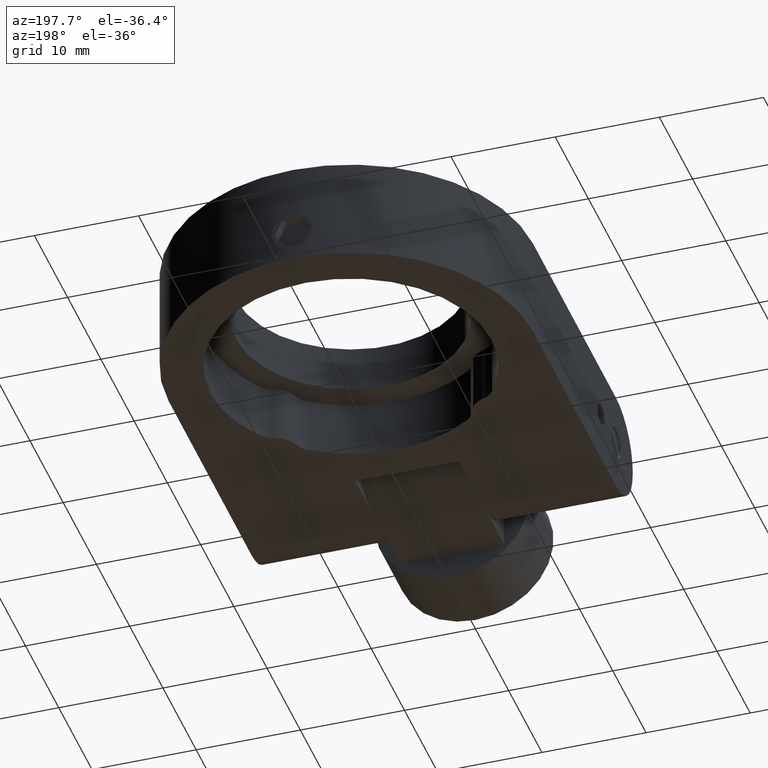
[diagram: clean part render]
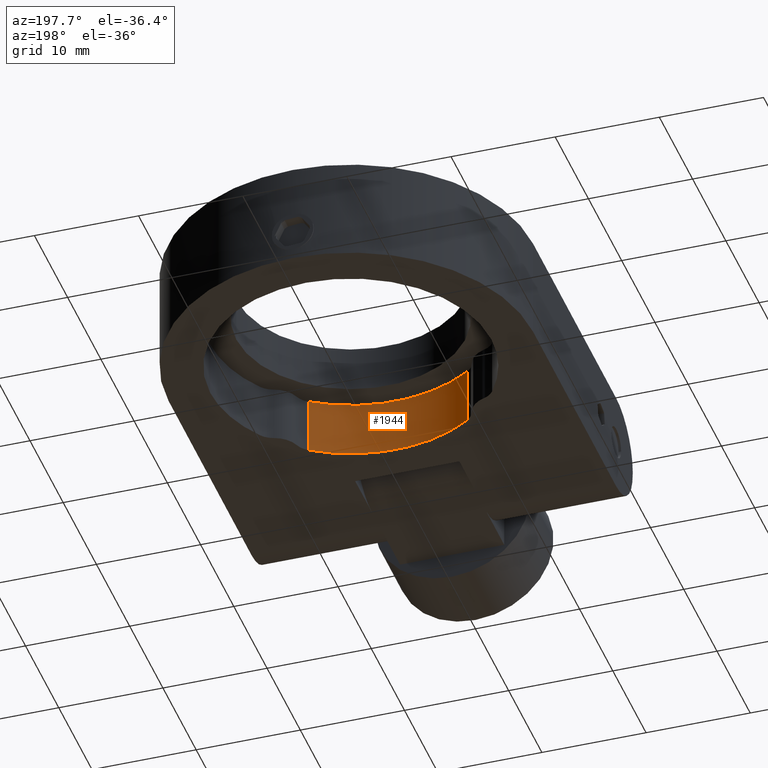
[diagram: same view with one face highlighted and labeled with its STEP entity id]
A machine part, auxiliary view. The second image highlights one B-rep face of the part: STEP entity #1944.
In plain terms, the highlighted cylindrical surface (partial cylindrical patch) has radius 13.5 mm, axis along (-0, -0, -1).
Its self-contained STEP definition (entity closure, byte-faithful):
#125 = EDGE_CURVE ( 'NONE', #2106, #203, #541, .T. ) ;
#146 = ORIENTED_EDGE ( 'NONE', *, *, #1495, .T. ) ;
#203 = VERTEX_POINT ( 'NONE', #890 ) ;
#376 = EDGE_CURVE ( 'NONE', #2106, #3211, #2364, .T. ) ;
#484 = DIRECTION ( 'NONE',  ( -1.057139645054936500E-016, -1.718301073974566900E-032, -1.000000000000000000 ) ) ;
#510 = CARTESIAN_POINT ( 'NONE',  ( 7.624298693328290400, 26.35908130202404500, 0.5000000000000186500 ) ) ;
#541 = CIRCLE ( 'NONE', #2954, 13.50000000000000000 ) ;
#871 = ORIENTED_EDGE ( 'NONE', *, *, #376, .T. ) ;
#890 = CARTESIAN_POINT ( 'NONE',  ( -7.624298693328290400, 26.35908130202404500, 0.5000000000000204300 ) ) ;
#1495 = EDGE_CURVE ( 'NONE', #1694, #203, #3588, .T. ) ;
#1529 = CYLINDRICAL_SURFACE ( 'NONE', #1721, 13.50000000000000000 ) ;
#1598 = ORIENTED_EDGE ( 'NONE', *, *, #125, .F. ) ;
#1631 = DIRECTION ( 'NONE',  ( -1.057139645054936500E-016, -1.718301073974566900E-032, -1.000000000000000000 ) ) ;
#1663 = CARTESIAN_POINT ( 'NONE',  ( -2.415325656008640800E-015, 37.50000000000009900, 0.5000000000000195400 ) ) ;
#1694 = VERTEX_POINT ( 'NONE', #2169 ) ;
#1721 = AXIS2_PLACEMENT_3D ( 'NONE', #3329, #2422, #1849 ) ;
#1774 = CARTESIAN_POINT ( 'NONE',  ( 7.624298693328288600, 26.35908130202404800, -4.999999999999980500 ) ) ;
#1849 = DIRECTION ( 'NONE',  ( -1.000000000000000000, 0.0000000000000000000, 1.044046536467522800E-016 ) ) ;
#1915 = EDGE_LOOP ( 'NONE', ( #1598, #871, #2148, #146 ) ) ;
#1944 = ADVANCED_FACE ( 'NONE', ( #2950 ), #1529, .F. ) ;
#1947 = CARTESIAN_POINT ( 'NONE',  ( 7.624298693328288600, 26.35908130202404800, 0.5000000000000186500 ) ) ;
#1976 = CARTESIAN_POINT ( 'NONE',  ( -7.624298693328292100, 26.35908130202404500, 0.5000000000000204300 ) ) ;
#1987 = AXIS2_PLACEMENT_3D ( 'NONE', #3072, #2731, #2154 ) ;
#2002 = VECTOR ( 'NONE', #3194, 1000.000000000000000 ) ;
#2106 = VERTEX_POINT ( 'NONE', #1947 ) ;
#2148 = ORIENTED_EDGE ( 'NONE', *, *, #2338, .T. ) ;
#2154 = DIRECTION ( 'NONE',  ( -1.000000000000000000, 0.0000000000000000000, 1.284980352575412700E-016 ) ) ;
#2169 = CARTESIAN_POINT ( 'NONE',  ( -7.624298693328290400, 26.35908130202404500, -4.999999999999980500 ) ) ;
#2338 = EDGE_CURVE ( 'NONE', #3211, #1694, #2720, .T. ) ;
#2364 = LINE ( 'NONE', #510, #2413 ) ;
#2413 = VECTOR ( 'NONE', #484, 1000.000000000000000 ) ;
#2422 = DIRECTION ( 'NONE',  ( -1.057139645054936500E-016, -1.718301073974566900E-032, -1.000000000000000000 ) ) ;
#2720 = CIRCLE ( 'NONE', #1987, 13.50000000000000000 ) ;
#2731 = DIRECTION ( 'NONE',  ( -1.057139645054936500E-016, -1.718301073974566900E-032, -1.000000000000000000 ) ) ;
#2950 = FACE_OUTER_BOUND ( 'NONE', #1915, .T. ) ;
#2954 = AXIS2_PLACEMENT_3D ( 'NONE', #1663, #1631, #3720 ) ;
#3072 = CARTESIAN_POINT ( 'NONE',  ( -2.996752460788856200E-015, 37.50000000000009900, -4.999999999999980500 ) ) ;
#3194 = DIRECTION ( 'NONE',  ( 1.057139645054936500E-016, 1.718301073974566900E-032, 1.000000000000000000 ) ) ;
#3211 = VERTEX_POINT ( 'NONE', #1774 ) ;
#3329 = CARTESIAN_POINT ( 'NONE',  ( -2.415325656008640800E-015, 37.50000000000009900, 0.5000000000000195400 ) ) ;
#3588 = LINE ( 'NONE', #1976, #2002 ) ;
#3720 = DIRECTION ( 'NONE',  ( -1.000000000000000000, 0.0000000000000000000, 1.044046536467522800E-016 ) ) ;